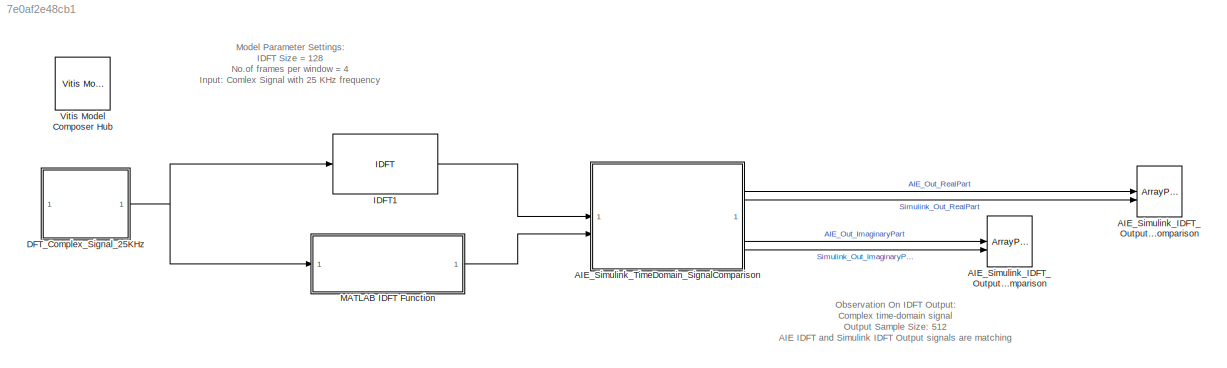
MODEL slx_7e0af2e48cb1
KIND model
CONFIG AbsTol = auto
CONFIG EnableMultiTasking = off
CONFIG FixedStep = auto
CONFIG MaxStep = auto
CONFIG MinStep = auto
CONFIG RelTol = 1e-3
CONFIG SampleTimeConstraint = Unconstrained
CONFIG SolverName = VariableStepAuto
CONFIG StartTime = 0.0
CONFIG StopTime = 0.1
BLOCK [ArrayPlot] AIE_Simulink_IDFT_Output_ImaginaryPart_Comparison 
  AxesScaling = Manual
  GraphicalSettings = {"Style":{"BackgroundColor":[0.15686274509803921,0.15686274509803921,0.15686274509803921],"AxesColor":[0,0,0],"LabelsColor":[0.68627450980392157,0.68627450980392157,0.68627450980392157],"LineStyle":["-","-"],"LineColor":[[1,1,0.066666666666666666],[0.074509803921568626,0.62352941176470589,1]],"LineWidth":[1.5,1.5],"Marker":["none","none"],"FontSize":"small"},"Cursors":{"Enabled":false,"XLocation":...<+392ch>
  NumInputPorts = 2
  PlotType = Line
  ShowLegend = on
  WasSavedAsWebScope = on
  WindowPosition = [2.000000,37.000000,1280.000000,655.000000,]
  YLimits = [-180,180]
BLOCK [ArrayPlot] AIE_Simulink_IDFT_Output_RealPart_Comparison
  GraphicalSettings = {"Style":{"BackgroundColor":[0.15686274509803921,0.15686274509803921,0.15686274509803921],"AxesColor":[0,0,0],"LabelsColor":[0.68627450980392157,0.68627450980392157,0.68627450980392157],"LineStyle":["-","-"],"LineColor":[[1,1,0.066666666666666666],[0.074509803921568626,0.62352941176470589,1]],"LineWidth":[1.5,1.5],"Marker":["none","none"],"FontSize":"small"},"Cursors":{"Enabled":false,"XLocation":...<+392ch>
  NumInputPorts = 2
  PlotType = Line
  ShowLegend = on
  WasSavedAsWebScope = on
  WindowPosition = [2.000000,37.000000,1280.000000,655.000000,]
  YLimits = [-159.9998,159.9998]
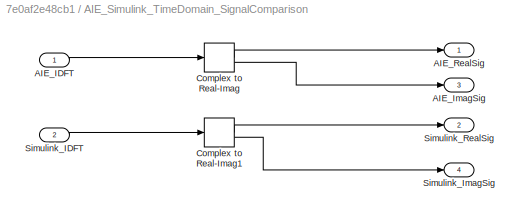
BLOCK [SubSystem] AIE_Simulink_TimeDomain_SignalComparison
BLOCK [Inport] AIE_Simulink_TimeDomain_SignalComparison/AIE_IDFT
BLOCK [Outport] AIE_Simulink_TimeDomain_SignalComparison/AIE_ImagSig
  Port = 3
BLOCK [Outport] AIE_Simulink_TimeDomain_SignalComparison/AIE_RealSig
BLOCK [ComplexToRealImag] AIE_Simulink_TimeDomain_SignalComparison/Complex to Real-Imag
BLOCK [ComplexToRealImag] AIE_Simulink_TimeDomain_SignalComparison/Complex to Real-Imag1
BLOCK [Inport] AIE_Simulink_TimeDomain_SignalComparison/Simulink_IDFT
  Port = 2
BLOCK [Outport] AIE_Simulink_TimeDomain_SignalComparison/Simulink_ImagSig
  Port = 4
BLOCK [Outport] AIE_Simulink_TimeDomain_SignalComparison/Simulink_RealSig
  Port = 2
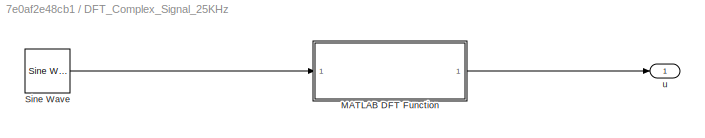
BLOCK [SubSystem] DFT_Complex_Signal_25KHz
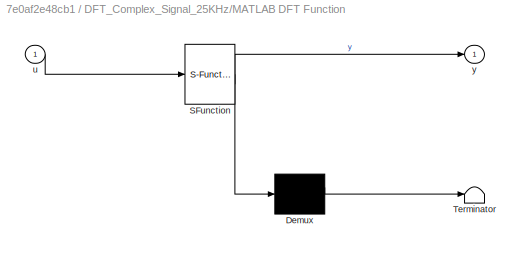
BLOCK [SubSystem] DFT_Complex_Signal_25KHz/MATLAB DFT Function
  ErrorFcn = Stateflow.Translate.translate
  PermitHierarchicalResolution = ExplicitOnly
  SFBlockType = MATLAB Function
  TreatAsAtomicUnit = on
BLOCK [Demux] DFT_Complex_Signal_25KHz/MATLAB DFT Function/ Demux 
  Outputs = 1
BLOCK [S-Function] DFT_Complex_Signal_25KHz/MATLAB DFT Function/ SFunction 
  EnableBusSupport = off
  FunctionName = sf_sfun
  PortCounts = [1 2]
  SFcnIsStateOwnerBlock = off
  SFunctionDeploymentMode = off
  Tag = Stateflow S-Function 2
BLOCK [Terminator] DFT_Complex_Signal_25KHz/MATLAB DFT Function/ Terminator 
BLOCK [Inport] DFT_Complex_Signal_25KHz/MATLAB DFT Function/u
BLOCK [Outport] DFT_Complex_Signal_25KHz/MATLAB DFT Function/y
BLOCK [Reference] DFT_Complex_Signal_25KHz/Sine Wave  REF=dspsrcs4/Sine Wave
  SourceBlock = dspsrcs4/Sine Wave
  SourceType = Sine Wave
BLOCK [Outport] DFT_Complex_Signal_25KHz/u
BLOCK [Reference] IDFT1  REF=aieDSP/IDFT
  SourceBlock = aieDSP/IDFT
  SourceType = IDFT
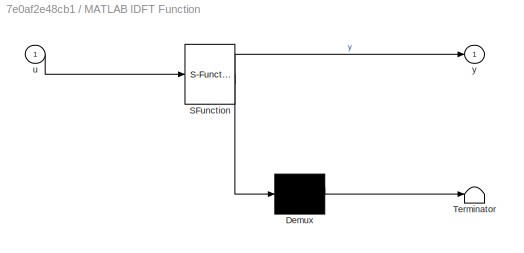
BLOCK [SubSystem] MATLAB IDFT Function
  ErrorFcn = Stateflow.Translate.translate
  PermitHierarchicalResolution = ExplicitOnly
  SFBlockType = MATLAB Function
  TreatAsAtomicUnit = on
BLOCK [Demux] MATLAB IDFT Function/ Demux 
  Outputs = 1
BLOCK [S-Function] MATLAB IDFT Function/ SFunction 
  EnableBusSupport = off
  FunctionName = sf_sfun
  PortCounts = [1 2]
  SFcnIsStateOwnerBlock = off
  SFunctionDeploymentMode = off
  Tag = Stateflow S-Function 1
BLOCK [Terminator] MATLAB IDFT Function/ Terminator 
BLOCK [Inport] MATLAB IDFT Function/u
BLOCK [Outport] MATLAB IDFT Function/y
BLOCK [Reference] Vitis Model Composer Hub  REF=vmcUtilities/Vitis Model Composer Hub
  SourceBlock = vmcUtilities/Vitis Model Composer Hub
  SourceType = VMC Hub
  Tag = genX
  UserDataPersistent = on
ANNOTATION (root): Model Parameter Settings: IDFT Size = 128 No.of frames per window = 4 Input: Comlex Signal with 25 KHz frequency
ANNOTATION (root): Observation On IDFT Output: Complex time-domain signal Output Sample Size: 512 AIE IDFT and Simulink IDFT Output signals are matching
LINE AIE_Simulink_TimeDomain_SignalComparison/AIE_IDFT:1 -> AIE_Simulink_TimeDomain_SignalComparison/Complex to Real-Imag:1
LINE AIE_Simulink_TimeDomain_SignalComparison/Complex to Real-Imag1:1 -> AIE_Simulink_TimeDomain_SignalComparison/Simulink_RealSig:1
LINE AIE_Simulink_TimeDomain_SignalComparison/Complex to Real-Imag1:2 -> AIE_Simulink_TimeDomain_SignalComparison/Simulink_ImagSig:1
LINE AIE_Simulink_TimeDomain_SignalComparison/Complex to Real-Imag:1 -> AIE_Simulink_TimeDomain_SignalComparison/AIE_RealSig:1
LINE AIE_Simulink_TimeDomain_SignalComparison/Complex to Real-Imag:2 -> AIE_Simulink_TimeDomain_SignalComparison/AIE_ImagSig:1
LINE AIE_Simulink_TimeDomain_SignalComparison/Simulink_IDFT:1 -> AIE_Simulink_TimeDomain_SignalComparison/Complex to Real-Imag1:1
LINE AIE_Simulink_TimeDomain_SignalComparison:1 -> AIE_Simulink_IDFT_Output_RealPart_Comparison:1
LINE AIE_Simulink_TimeDomain_SignalComparison:2 -> AIE_Simulink_IDFT_Output_RealPart_Comparison:2
LINE AIE_Simulink_TimeDomain_SignalComparison:3 -> AIE_Simulink_IDFT_Output_ImaginaryPart_Comparison :1
LINE AIE_Simulink_TimeDomain_SignalComparison:4 -> AIE_Simulink_IDFT_Output_ImaginaryPart_Comparison :2
LINE DFT_Complex_Signal_25KHz/MATLAB DFT Function:1 -> DFT_Complex_Signal_25KHz/u:1
LINE DFT_Complex_Signal_25KHz/Sine Wave:1 -> DFT_Complex_Signal_25KHz/MATLAB DFT Function:1
NET DFT_Complex_Signal_25KHz:1 -> IDFT1:1, MATLAB IDFT Function:1
LINE IDFT1:1 -> AIE_Simulink_TimeDomain_SignalComparison:1
LINE MATLAB IDFT Function:1 -> AIE_Simulink_TimeDomain_SignalComparison:2
note: NET lines group one-source signal fan-out (src -> all destinations, sorted); 1:1 wires keep LINE
CHART MATLAB IDFT Function states=1 transitions=1
  STATE_LABEL 'eML_blk_kernel()'
  STATE_LABEL 'SCRIPT:\n\nfunction y = fcn(u)\n\nIDFT_Size = 128; % IDFT Size\nFramesPerWindow = 4; %No.of Frames Per Window\n\nX = single(complex(zeros(IDFT_Size,FramesPerWindow)));\n\nfor m = 1:1:FramesPerWindow\n\n     for n = 0:IDFT_Size-1\n        for k = 0:IDFT_Size-1\n        X(n+1,m) = X(n+1,m) + (u(k+1)*exp(1i*2*pi*n*k/IDFT_Size));\n        end\n        \n     end\n        \nend\n\ny = (reshape(X,IDFT_Size*FramesPerWindow,...<+4ch>'
CHART DFT_Complex_Signal_25KHz/MATLAB DFT Function states=1 transitions=1
  STATE_LABEL 'eML_blk_kernel()'
  STATE_LABEL 'SCRIPT:\n\nfunction y = fcn(u)\n\nDFT_Size = 128; % DFT Size\nFramesPerWindow = 1; %No.of Frames Per Window\nu = single(u);\n\nX = single(complex(zeros(DFT_Size,FramesPerWindow)));\n\nfor m = 1:1:FramesPerWindow\nfor k = 0:DFT_Size-1\n    for n = 0:DFT_Size-1\n        X(k+1,m) = X(k+1,m) + u(n+1)*exp(-1i*2*pi*n*k/DFT_Size);\n    end\nend\nend\n\ny = reshape(X,DFT_Size*FramesPerWindow,1);'
CHART  states=0 transitions=0
CHART  states=0 transitions=0
